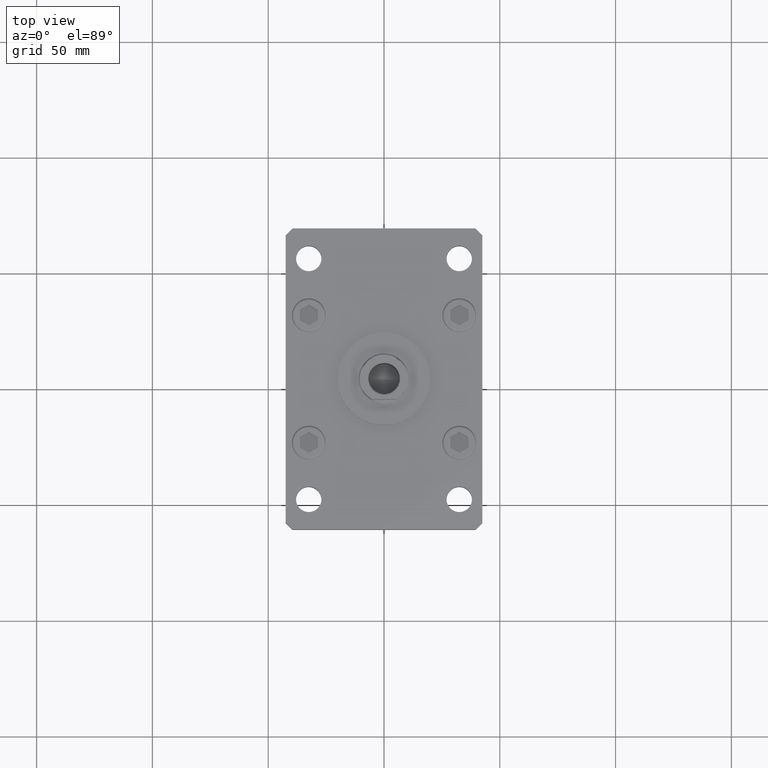
[diagram: clean part render]
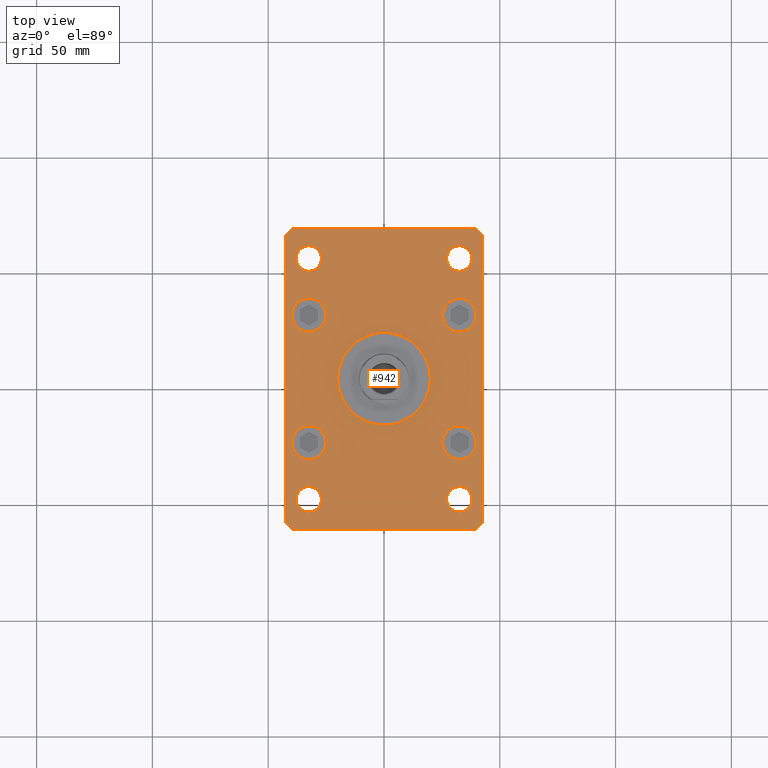
[diagram: same view with one face highlighted and labeled with its STEP entity id]
A machine part, top view. The second image highlights one B-rep face of the part: STEP entity #942.
In plain terms, the highlighted planar face has unit normal (0, 0, 1).
Its self-contained STEP definition (entity closure, byte-faithful):
#6 = CARTESIAN_POINT ( 'NONE',  ( 0.000000000000000000, 0.000000000000000000, 15.00000000000000000 ) ) ;
#217 = LINE ( 'NONE', #33275, #35830 ) ;
#225 = EDGE_LOOP ( 'NONE', ( #3517, #4763 ) ) ;
#512 = AXIS2_PLACEMENT_3D ( 'NONE', #52414, #15288, #52679 ) ;
#590 = CARTESIAN_POINT ( 'NONE',  ( 39.75000000000000000, 27.50000000000000000, 15.00000000000000000 ) ) ;
#935 = EDGE_CURVE ( 'NONE', #34206, #29823, #40267, .T. ) ;
#942 = ADVANCED_FACE ( 'NONE', ( #20340, #45015, #7859, #24396, #40950, #36870, #45283, #16280, #8128, #24656 ), #37420, .T. ) ;
#1539 = EDGE_CURVE ( 'NONE', #28134, #3203, #6567, .T. ) ;
#1637 = AXIS2_PLACEMENT_3D ( 'NONE', #6910, #35380, #18857 ) ;
#1792 = ORIENTED_EDGE ( 'NONE', *, *, #10420, .F. ) ;
#1856 = CIRCLE ( 'NONE', #3640, 5.499999999999998224 ) ;
#1938 = AXIS2_PLACEMENT_3D ( 'NONE', #38843, #34760, #39365 ) ;
#2201 = CARTESIAN_POINT ( 'NONE',  ( 42.50000000000000000, 62.00000000000000711, 15.00000000000000000 ) ) ;
#2692 = DIRECTION ( 'NONE',  ( 1.000000000000000000, 0.000000000000000000, 0.000000000000000000 ) ) ;
#3203 = VERTEX_POINT ( 'NONE', #18571 ) ;
#3365 = DIRECTION ( 'NONE',  ( 0.7071067811865459074, 0.7071067811865491270, 0.000000000000000000 ) ) ;
#3377 = CIRCLE ( 'NONE', #1637, 7.249999999999999112 ) ;
#3455 = EDGE_LOOP ( 'NONE', ( #20028, #23917 ) ) ;
#3457 = EDGE_LOOP ( 'NONE', ( #18625, #1792 ) ) ;
#3494 = EDGE_CURVE ( 'NONE', #32194, #27687, #36036, .T. ) ;
#3517 = ORIENTED_EDGE ( 'NONE', *, *, #5594, .F. ) ;
#3640 = AXIS2_PLACEMENT_3D ( 'NONE', #4130, #40469, #37204 ) ;
#3954 = ORIENTED_EDGE ( 'NONE', *, *, #34375, .F. ) ;
#4071 = DIRECTION ( 'NONE',  ( 0.000000000000000000, 0.000000000000000000, 1.000000000000000000 ) ) ;
#4130 = CARTESIAN_POINT ( 'NONE',  ( 32.49999999999997868, -52.00000000000000711, 15.00000000000000000 ) ) ;
#4144 = ORIENTED_EDGE ( 'NONE', *, *, #43973, .T. ) ;
#4303 = CARTESIAN_POINT ( 'NONE',  ( 27.00000000000001421, 51.99999999999999289, 15.00000000000000000 ) ) ;
#4763 = ORIENTED_EDGE ( 'NONE', *, *, #45690, .F. ) ;
#4830 = AXIS2_PLACEMENT_3D ( 'NONE', #10738, #27277, #43822 ) ;
#5098 = EDGE_LOOP ( 'NONE', ( #44151, #26934 ) ) ;
#5594 = EDGE_CURVE ( 'NONE', #37955, #47279, #6675, .T. ) ;
#5717 = DIRECTION ( 'NONE',  ( 0.000000000000000000, 0.000000000000000000, 1.000000000000000000 ) ) ;
#5814 = AXIS2_PLACEMENT_3D ( 'NONE', #12222, #41251, #32291 ) ;
#6567 = CIRCLE ( 'NONE', #4830, 5.499999999999991118 ) ;
#6675 = CIRCLE ( 'NONE', #9272, 7.249999999999999112 ) ;
#6760 = DIRECTION ( 'NONE',  ( 1.000000000000000000, 0.000000000000000000, 0.000000000000000000 ) ) ;
#6763 = CARTESIAN_POINT ( 'NONE',  ( 32.49999999999997868, -52.00000000000000711, 15.00000000000000000 ) ) ;
#6910 = CARTESIAN_POINT ( 'NONE',  ( -32.50000000000000000, -27.50000000000000000, 15.00000000000000000 ) ) ;
#7113 = EDGE_CURVE ( 'NONE', #29823, #34206, #50752, .T. ) ;
#7374 = AXIS2_PLACEMENT_3D ( 'NONE', #6, #4071, #41223 ) ;
#7859 = FACE_BOUND ( 'NONE', #45494, .T. ) ;
#8071 = EDGE_CURVE ( 'NONE', #48547, #31992, #35173, .T. ) ;
#8128 = FACE_BOUND ( 'NONE', #225, .T. ) ;
#8729 = CARTESIAN_POINT ( 'NONE',  ( 25.25000000000000000, -27.50000000000000000, 15.00000000000000000 ) ) ;
#9272 = AXIS2_PLACEMENT_3D ( 'NONE', #12887, #20217, #37572 ) ;
#9779 = CARTESIAN_POINT ( 'NONE',  ( -32.49999999999997868, -52.00000000000000711, 15.00000000000000000 ) ) ;
#9823 = CARTESIAN_POINT ( 'NONE',  ( 26.99999999999998579, -52.00000000000000711, 15.00000000000000000 ) ) ;
#10274 = LINE ( 'NONE', #30872, #47105 ) ;
#10319 = DIRECTION ( 'NONE',  ( 1.000000000000000000, 0.000000000000000000, 0.000000000000000000 ) ) ;
#10420 = EDGE_CURVE ( 'NONE', #27687, #32194, #1856, .T. ) ;
#10550 = DIRECTION ( 'NONE',  ( 0.000000000000000000, 0.000000000000000000, 1.000000000000000000 ) ) ;
#10738 = CARTESIAN_POINT ( 'NONE',  ( 32.50000000000000000, 51.99999999999999289, 15.00000000000000000 ) ) ;
#10880 = CARTESIAN_POINT ( 'NONE',  ( 20.00000000000000000, 2.449293598294706513E-15, 15.00000000000000000 ) ) ;
#10907 = EDGE_CURVE ( 'NONE', #27535, #26484, #3377, .T. ) ;
#10915 = ORIENTED_EDGE ( 'NONE', *, *, #24798, .F. ) ;
#11062 = DIRECTION ( 'NONE',  ( 2.238352872228137677E-16, -1.000000000000000000, 0.000000000000000000 ) ) ;
#11246 = CARTESIAN_POINT ( 'NONE',  ( -32.50000000000000711, 27.50000000000000000, 15.00000000000000000 ) ) ;
#11388 = EDGE_LOOP ( 'NONE', ( #39882, #53353 ) ) ;
#11823 = CIRCLE ( 'NONE', #39557, 7.249999999999999112 ) ;
#12001 = VERTEX_POINT ( 'NONE', #8729 ) ;
#12222 = CARTESIAN_POINT ( 'NONE',  ( 32.50000000000000000, 27.50000000000000000, 15.00000000000000000 ) ) ;
#12723 = VECTOR ( 'NONE', #48706, 1000.000000000000000 ) ;
#12887 = CARTESIAN_POINT ( 'NONE',  ( 32.50000000000000000, 27.50000000000000000, 15.00000000000000000 ) ) ;
#13086 = CIRCLE ( 'NONE', #20014, 7.249999999999999112 ) ;
#13765 = EDGE_LOOP ( 'NONE', ( #32987, #33026 ) ) ;
#13930 = DIRECTION ( 'NONE',  ( 0.000000000000000000, 0.000000000000000000, 1.000000000000000000 ) ) ;
#14356 = ORIENTED_EDGE ( 'NONE', *, *, #20308, .T. ) ;
#14394 = EDGE_CURVE ( 'NONE', #20654, #46517, #44322, .T. ) ;
#15005 = VERTEX_POINT ( 'NONE', #24776 ) ;
#15288 = DIRECTION ( 'NONE',  ( 0.000000000000000000, 0.000000000000000000, 1.000000000000000000 ) ) ;
#15530 = ORIENTED_EDGE ( 'NONE', *, *, #34536, .F. ) ;
#15555 = CARTESIAN_POINT ( 'NONE',  ( -26.99999999999998579, -52.00000000000000711, 15.00000000000000000 ) ) ;
#15750 = DIRECTION ( 'NONE',  ( 1.000000000000000000, 0.000000000000000000, 0.000000000000000000 ) ) ;
#16013 = DIRECTION ( 'NONE',  ( -0.7071067811865417996, 0.7071067811865532349, 0.000000000000000000 ) ) ;
#16280 = FACE_BOUND ( 'NONE', #5098, .T. ) ;
#16315 = DIRECTION ( 'NONE',  ( 0.000000000000000000, 0.000000000000000000, 1.000000000000000000 ) ) ;
#16610 = VERTEX_POINT ( 'NONE', #10880 ) ;
#17476 = VECTOR ( 'NONE', #36526, 1000.000000000000000 ) ;
#17647 = EDGE_CURVE ( 'NONE', #42586, #12001, #24340, .T. ) ;
#18074 = DIRECTION ( 'NONE',  ( 0.000000000000000000, 1.000000000000000000, 0.000000000000000000 ) ) ;
#18397 = CIRCLE ( 'NONE', #1938, 7.249999999999999112 ) ;
#18571 = CARTESIAN_POINT ( 'NONE',  ( 37.99999999999999289, 51.99999999999999289, 15.00000000000000000 ) ) ;
#18625 = ORIENTED_EDGE ( 'NONE', *, *, #3494, .F. ) ;
#18857 = DIRECTION ( 'NONE',  ( 1.000000000000000000, 0.000000000000000000, 0.000000000000000000 ) ) ;
#19254 = VERTEX_POINT ( 'NONE', #2201 ) ;
#19483 = CARTESIAN_POINT ( 'NONE',  ( 39.50000000000001421, -64.99999999999988631, 15.00000000000000000 ) ) ;
#19936 = DIRECTION ( 'NONE',  ( 1.000000000000000000, 0.000000000000000000, 0.000000000000000000 ) ) ;
#20014 = AXIS2_PLACEMENT_3D ( 'NONE', #11246, #43813, #19936 ) ;
#20028 = ORIENTED_EDGE ( 'NONE', *, *, #22311, .F. ) ;
#20098 = AXIS2_PLACEMENT_3D ( 'NONE', #49347, #32278, #15750 ) ;
#20217 = DIRECTION ( 'NONE',  ( 0.000000000000000000, 0.000000000000000000, 1.000000000000000000 ) ) ;
#20291 = EDGE_CURVE ( 'NONE', #16610, #41174, #43363, .T. ) ;
#20308 = EDGE_CURVE ( 'NONE', #19254, #40487, #23612, .T. ) ;
#20340 = FACE_BOUND ( 'NONE', #13765, .T. ) ;
#20654 = VERTEX_POINT ( 'NONE', #19483 ) ;
#22311 = EDGE_CURVE ( 'NONE', #33767, #43713, #13086, .T. ) ;
#22720 = CARTESIAN_POINT ( 'NONE',  ( -42.49999999999999289, -62.00000000000001421, 15.00000000000000000 ) ) ;
#22767 = CARTESIAN_POINT ( 'NONE',  ( 0.000000000000000000, 0.000000000000000000, 15.00000000000000000 ) ) ;
#22988 = CIRCLE ( 'NONE', #512, 7.249999999999999112 ) ;
#23247 = EDGE_CURVE ( 'NONE', #15005, #29083, #49262, .T. ) ;
#23347 = CARTESIAN_POINT ( 'NONE',  ( -42.50000000000002132, 62.00000000000000711, 15.00000000000000000 ) ) ;
#23568 = AXIS2_PLACEMENT_3D ( 'NONE', #46089, #34616, #30543 ) ;
#23612 = LINE ( 'NONE', #48810, #40883 ) ;
#23863 = CIRCLE ( 'NONE', #30802, 5.499999999999994671 ) ;
#23917 = ORIENTED_EDGE ( 'NONE', *, *, #26079, .F. ) ;
#24096 = CARTESIAN_POINT ( 'NONE',  ( 32.50000000000000000, -27.50000000000000000, 15.00000000000000000 ) ) ;
#24166 = CARTESIAN_POINT ( 'NONE',  ( 42.50000000000000000, -61.99999999999988631, 15.00000000000000000 ) ) ;
#24340 = CIRCLE ( 'NONE', #40807, 7.249999999999999112 ) ;
#24396 = FACE_BOUND ( 'NONE', #11388, .T. ) ;
#24629 = CARTESIAN_POINT ( 'NONE',  ( -39.75000000000000711, 27.50000000000000000, 15.00000000000000000 ) ) ;
#24656 = FACE_BOUND ( 'NONE', #3457, .T. ) ;
#24690 = DIRECTION ( 'NONE',  ( 1.000000000000000000, 0.000000000000000000, 0.000000000000000000 ) ) ;
#24776 = CARTESIAN_POINT ( 'NONE',  ( -39.50000000000003553, 65.00000000000000000, 15.00000000000000000 ) ) ;
#24780 = VECTOR ( 'NONE', #27041, 1000.000000000000000 ) ;
#24798 = EDGE_CURVE ( 'NONE', #3203, #28134, #52170, .T. ) ;
#25241 = ORIENTED_EDGE ( 'NONE', *, *, #8071, .T. ) ;
#25340 = CARTESIAN_POINT ( 'NONE',  ( 39.75000000000000000, -27.50000000000000000, 15.00000000000000000 ) ) ;
#26079 = EDGE_CURVE ( 'NONE', #43713, #33767, #18397, .T. ) ;
#26311 = CARTESIAN_POINT ( 'NONE',  ( -32.50000000000000000, -27.50000000000000000, 15.00000000000000000 ) ) ;
#26484 = VERTEX_POINT ( 'NONE', #37379 ) ;
#26622 = VECTOR ( 'NONE', #18074, 1000.000000000000000 ) ;
#26667 = CARTESIAN_POINT ( 'NONE',  ( -32.49999999999997868, -52.00000000000000711, 15.00000000000000000 ) ) ;
#26934 = ORIENTED_EDGE ( 'NONE', *, *, #47400, .F. ) ;
#27041 = DIRECTION ( 'NONE',  ( 0.7071067811865483499, -0.7071067811865466846, 0.000000000000000000 ) ) ;
#27277 = DIRECTION ( 'NONE',  ( 0.000000000000000000, 0.000000000000000000, 1.000000000000000000 ) ) ;
#27379 = AXIS2_PLACEMENT_3D ( 'NONE', #36905, #16315, #24690 ) ;
#27535 = VERTEX_POINT ( 'NONE', #37916 ) ;
#27687 = VERTEX_POINT ( 'NONE', #50505 ) ;
#28000 = ORIENTED_EDGE ( 'NONE', *, *, #29465, .T. ) ;
#28134 = VERTEX_POINT ( 'NONE', #4303 ) ;
#28400 = CIRCLE ( 'NONE', #42284, 5.499999999999994671 ) ;
#28472 = DIRECTION ( 'NONE',  ( 1.000000000000000000, 0.000000000000000000, 0.000000000000000000 ) ) ;
#28741 = CARTESIAN_POINT ( 'NONE',  ( -32.50000000000000000, 52.00000000000000000, 15.00000000000000000 ) ) ;
#29083 = VERTEX_POINT ( 'NONE', #23347 ) ;
#29465 = EDGE_CURVE ( 'NONE', #29083, #48547, #10274, .T. ) ;
#29490 = EDGE_CURVE ( 'NONE', #31992, #20654, #217, .T. ) ;
#29823 = VERTEX_POINT ( 'NONE', #44093 ) ;
#30106 = VERTEX_POINT ( 'NONE', #15555 ) ;
#30269 = CARTESIAN_POINT ( 'NONE',  ( 42.50000000000000000, -61.99999999999988631, 15.00000000000000000 ) ) ;
#30543 = DIRECTION ( 'NONE',  ( 1.000000000000000000, 0.000000000000000000, 0.000000000000000000 ) ) ;
#30802 = AXIS2_PLACEMENT_3D ( 'NONE', #9779, #35252, #43404 ) ;
#30815 = ORIENTED_EDGE ( 'NONE', *, *, #29490, .T. ) ;
#30872 = CARTESIAN_POINT ( 'NONE',  ( -42.50000000000002132, 62.00000000000000711, 15.00000000000000000 ) ) ;
#31434 = DIRECTION ( 'NONE',  ( 1.000000000000000000, 0.000000000000000000, 0.000000000000000000 ) ) ;
#31789 = ORIENTED_EDGE ( 'NONE', *, *, #23247, .T. ) ;
#31992 = VERTEX_POINT ( 'NONE', #47562 ) ;
#32194 = VERTEX_POINT ( 'NONE', #9823 ) ;
#32278 = DIRECTION ( 'NONE',  ( 0.000000000000000000, 0.000000000000000000, 1.000000000000000000 ) ) ;
#32291 = DIRECTION ( 'NONE',  ( 1.000000000000000000, 0.000000000000000000, 0.000000000000000000 ) ) ;
#32466 = ORIENTED_EDGE ( 'NONE', *, *, #52171, .F. ) ;
#32987 = ORIENTED_EDGE ( 'NONE', *, *, #35145, .F. ) ;
#33011 = DIRECTION ( 'NONE',  ( 1.000000000000000000, 1.405345600791337191E-15, 0.000000000000000000 ) ) ;
#33026 = ORIENTED_EDGE ( 'NONE', *, *, #20291, .F. ) ;
#33275 = CARTESIAN_POINT ( 'NONE',  ( -39.50000000000000000, -65.00000000000000000, 15.00000000000000000 ) ) ;
#33767 = VERTEX_POINT ( 'NONE', #24629 ) ;
#34206 = VERTEX_POINT ( 'NONE', #42071 ) ;
#34375 = EDGE_CURVE ( 'NONE', #40684, #30106, #23863, .T. ) ;
#34536 = EDGE_CURVE ( 'NONE', #12001, #42586, #22988, .T. ) ;
#34616 = DIRECTION ( 'NONE',  ( 0.000000000000000000, 0.000000000000000000, 1.000000000000000000 ) ) ;
#34760 = DIRECTION ( 'NONE',  ( 0.000000000000000000, 0.000000000000000000, 1.000000000000000000 ) ) ;
#35075 = AXIS2_PLACEMENT_3D ( 'NONE', #28741, #41499, #28472 ) ;
#35145 = EDGE_CURVE ( 'NONE', #41174, #16610, #42046, .T. ) ;
#35173 = LINE ( 'NONE', #22720, #24780 ) ;
#35252 = DIRECTION ( 'NONE',  ( 0.000000000000000000, 0.000000000000000000, 1.000000000000000000 ) ) ;
#35380 = DIRECTION ( 'NONE',  ( 0.000000000000000000, 0.000000000000000000, 1.000000000000000000 ) ) ;
#35830 = VECTOR ( 'NONE', #33011, 1000.000000000000000 ) ;
#36036 = CIRCLE ( 'NONE', #41255, 5.499999999999998224 ) ;
#36285 = DIRECTION ( 'NONE',  ( 0.000000000000000000, 0.000000000000000000, 1.000000000000000000 ) ) ;
#36526 = DIRECTION ( 'NONE',  ( -0.7071067811865466846, -0.7071067811865483499, 0.000000000000000000 ) ) ;
#36870 = FACE_OUTER_BOUND ( 'NONE', #46935, .T. ) ;
#36905 = CARTESIAN_POINT ( 'NONE',  ( -32.50000000000000000, 52.00000000000000000, 15.00000000000000000 ) ) ;
#37204 = DIRECTION ( 'NONE',  ( 1.000000000000000000, 0.000000000000000000, 0.000000000000000000 ) ) ;
#37280 = CARTESIAN_POINT ( 'NONE',  ( -42.49999999999999289, -62.00000000000001421, 15.00000000000000000 ) ) ;
#37379 = CARTESIAN_POINT ( 'NONE',  ( -25.25000000000000000, -27.50000000000000000, 15.00000000000000000 ) ) ;
#37420 = PLANE ( 'NONE',  #7374 ) ;
#37572 = DIRECTION ( 'NONE',  ( 1.000000000000000000, 0.000000000000000000, 0.000000000000000000 ) ) ;
#37916 = CARTESIAN_POINT ( 'NONE',  ( -39.75000000000000000, -27.50000000000000000, 15.00000000000000000 ) ) ;
#37955 = VERTEX_POINT ( 'NONE', #48077 ) ;
#38843 = CARTESIAN_POINT ( 'NONE',  ( -32.50000000000000711, 27.50000000000000000, 15.00000000000000000 ) ) ;
#39365 = DIRECTION ( 'NONE',  ( 1.000000000000000000, 0.000000000000000000, 0.000000000000000000 ) ) ;
#39444 = AXIS2_PLACEMENT_3D ( 'NONE', #22767, #10550, #6760 ) ;
#39557 = AXIS2_PLACEMENT_3D ( 'NONE', #26311, #5717, #10319 ) ;
#39603 = CIRCLE ( 'NONE', #5814, 7.249999999999999112 ) ;
#39668 = DIRECTION ( 'NONE',  ( 1.000000000000000000, 0.000000000000000000, 0.000000000000000000 ) ) ;
#39882 = ORIENTED_EDGE ( 'NONE', *, *, #7113, .F. ) ;
#40267 = CIRCLE ( 'NONE', #35075, 5.499999999999994671 ) ;
#40314 = LINE ( 'NONE', #52775, #12723 ) ;
#40469 = DIRECTION ( 'NONE',  ( 0.000000000000000000, 0.000000000000000000, 1.000000000000000000 ) ) ;
#40487 = VERTEX_POINT ( 'NONE', #45287 ) ;
#40684 = VERTEX_POINT ( 'NONE', #41437 ) ;
#40807 = AXIS2_PLACEMENT_3D ( 'NONE', #24096, #44716, #31434 ) ;
#40883 = VECTOR ( 'NONE', #16013, 1000.000000000000000 ) ;
#40950 = FACE_BOUND ( 'NONE', #44131, .T. ) ;
#41174 = VERTEX_POINT ( 'NONE', #41371 ) ;
#41207 = CARTESIAN_POINT ( 'NONE',  ( -25.25000000000000711, 27.50000000000000000, 15.00000000000000000 ) ) ;
#41223 = DIRECTION ( 'NONE',  ( 1.000000000000000000, 0.000000000000000000, -0.000000000000000000 ) ) ;
#41251 = DIRECTION ( 'NONE',  ( 0.000000000000000000, 0.000000000000000000, 1.000000000000000000 ) ) ;
#41255 = AXIS2_PLACEMENT_3D ( 'NONE', #6763, #36285, #2692 ) ;
#41371 = CARTESIAN_POINT ( 'NONE',  ( -20.00000000000000000, 0.000000000000000000, 15.00000000000000000 ) ) ;
#41437 = CARTESIAN_POINT ( 'NONE',  ( -37.99999999999997868, -52.00000000000000711, 15.00000000000000000 ) ) ;
#41499 = DIRECTION ( 'NONE',  ( 0.000000000000000000, 0.000000000000000000, 1.000000000000000000 ) ) ;
#42046 = CIRCLE ( 'NONE', #39444, 20.00000000000000000 ) ;
#42071 = CARTESIAN_POINT ( 'NONE',  ( -27.00000000000000711, 52.00000000000000000, 15.00000000000000000 ) ) ;
#42284 = AXIS2_PLACEMENT_3D ( 'NONE', #26667, #13930, #39668 ) ;
#42586 = VERTEX_POINT ( 'NONE', #25340 ) ;
#42751 = LINE ( 'NONE', #30269, #26622 ) ;
#43055 = ORIENTED_EDGE ( 'NONE', *, *, #17647, .F. ) ;
#43070 = EDGE_CURVE ( 'NONE', #40487, #15005, #40314, .T. ) ;
#43363 = CIRCLE ( 'NONE', #20098, 20.00000000000000000 ) ;
#43404 = DIRECTION ( 'NONE',  ( 1.000000000000000000, 0.000000000000000000, 0.000000000000000000 ) ) ;
#43713 = VERTEX_POINT ( 'NONE', #41207 ) ;
#43813 = DIRECTION ( 'NONE',  ( 0.000000000000000000, 0.000000000000000000, 1.000000000000000000 ) ) ;
#43822 = DIRECTION ( 'NONE',  ( 1.000000000000000000, 0.000000000000000000, 0.000000000000000000 ) ) ;
#43973 = EDGE_CURVE ( 'NONE', #46517, #19254, #42751, .T. ) ;
#44093 = CARTESIAN_POINT ( 'NONE',  ( -38.00000000000000000, 52.00000000000000000, 15.00000000000000000 ) ) ;
#44131 = EDGE_LOOP ( 'NONE', ( #3954, #32466 ) ) ;
#44151 = ORIENTED_EDGE ( 'NONE', *, *, #10907, .F. ) ;
#44163 = ORIENTED_EDGE ( 'NONE', *, *, #43070, .T. ) ;
#44322 = LINE ( 'NONE', #48899, #49384 ) ;
#44716 = DIRECTION ( 'NONE',  ( 0.000000000000000000, 0.000000000000000000, 1.000000000000000000 ) ) ;
#44807 = EDGE_LOOP ( 'NONE', ( #47629, #10915 ) ) ;
#45015 = FACE_BOUND ( 'NONE', #3455, .T. ) ;
#45283 = FACE_BOUND ( 'NONE', #44807, .T. ) ;
#45287 = CARTESIAN_POINT ( 'NONE',  ( 39.50000000000002842, 65.00000000000002842, 15.00000000000000000 ) ) ;
#45494 = EDGE_LOOP ( 'NONE', ( #15530, #43055 ) ) ;
#45690 = EDGE_CURVE ( 'NONE', #47279, #37955, #39603, .T. ) ;
#46089 = CARTESIAN_POINT ( 'NONE',  ( 32.50000000000000000, 51.99999999999999289, 15.00000000000000000 ) ) ;
#46517 = VERTEX_POINT ( 'NONE', #24166 ) ;
#46886 = ORIENTED_EDGE ( 'NONE', *, *, #14394, .T. ) ;
#46935 = EDGE_LOOP ( 'NONE', ( #30815, #46886, #4144, #14356, #44163, #31789, #28000, #25241 ) ) ;
#47105 = VECTOR ( 'NONE', #11062, 1000.000000000000000 ) ;
#47279 = VERTEX_POINT ( 'NONE', #590 ) ;
#47400 = EDGE_CURVE ( 'NONE', #26484, #27535, #11823, .T. ) ;
#47562 = CARTESIAN_POINT ( 'NONE',  ( -39.50000000000000000, -65.00000000000000000, 15.00000000000000000 ) ) ;
#47629 = ORIENTED_EDGE ( 'NONE', *, *, #1539, .F. ) ;
#48077 = CARTESIAN_POINT ( 'NONE',  ( 25.25000000000000000, 27.50000000000000000, 15.00000000000000000 ) ) ;
#48547 = VERTEX_POINT ( 'NONE', #37280 ) ;
#48706 = DIRECTION ( 'NONE',  ( -1.000000000000000000, -3.513364001978340512E-16, 0.000000000000000000 ) ) ;
#48810 = CARTESIAN_POINT ( 'NONE',  ( 42.50000000000000000, 62.00000000000000711, 15.00000000000000000 ) ) ;
#48899 = CARTESIAN_POINT ( 'NONE',  ( 39.50000000000001421, -64.99999999999988631, 15.00000000000000000 ) ) ;
#49262 = LINE ( 'NONE', #49802, #17476 ) ;
#49347 = CARTESIAN_POINT ( 'NONE',  ( 0.000000000000000000, 0.000000000000000000, 15.00000000000000000 ) ) ;
#49384 = VECTOR ( 'NONE', #3365, 1000.000000000000114 ) ;
#49802 = CARTESIAN_POINT ( 'NONE',  ( -39.50000000000003553, 65.00000000000000000, 15.00000000000000000 ) ) ;
#50505 = CARTESIAN_POINT ( 'NONE',  ( 37.99999999999997868, -52.00000000000000711, 15.00000000000000000 ) ) ;
#50752 = CIRCLE ( 'NONE', #27379, 5.499999999999994671 ) ;
#52170 = CIRCLE ( 'NONE', #23568, 5.499999999999991118 ) ;
#52171 = EDGE_CURVE ( 'NONE', #30106, #40684, #28400, .T. ) ;
#52414 = CARTESIAN_POINT ( 'NONE',  ( 32.50000000000000000, -27.50000000000000000, 15.00000000000000000 ) ) ;
#52679 = DIRECTION ( 'NONE',  ( 1.000000000000000000, 0.000000000000000000, 0.000000000000000000 ) ) ;
#52775 = CARTESIAN_POINT ( 'NONE',  ( 39.50000000000002842, 65.00000000000002842, 15.00000000000000000 ) ) ;
#53353 = ORIENTED_EDGE ( 'NONE', *, *, #935, .F. ) ;